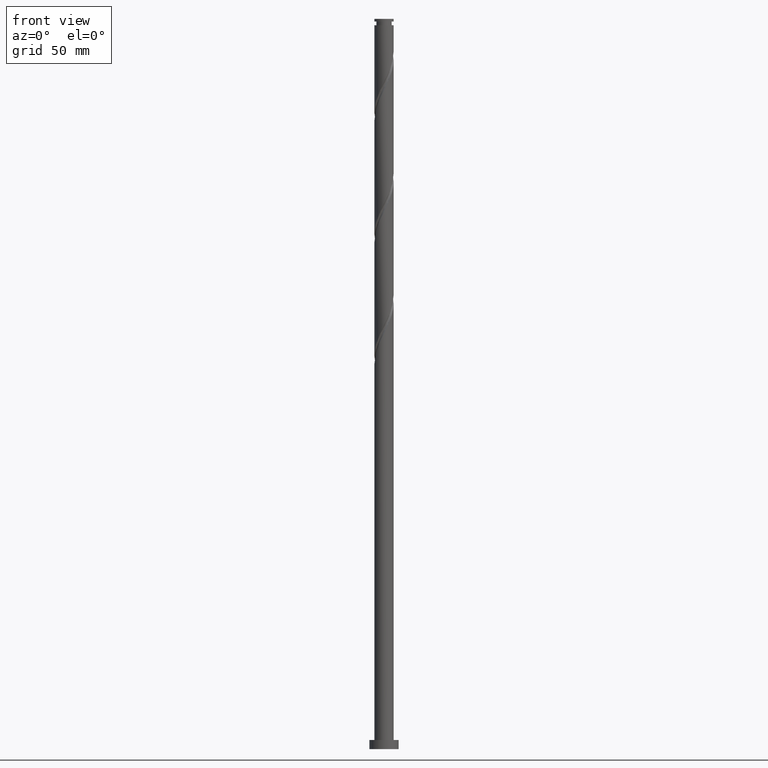
[diagram: clean part render]
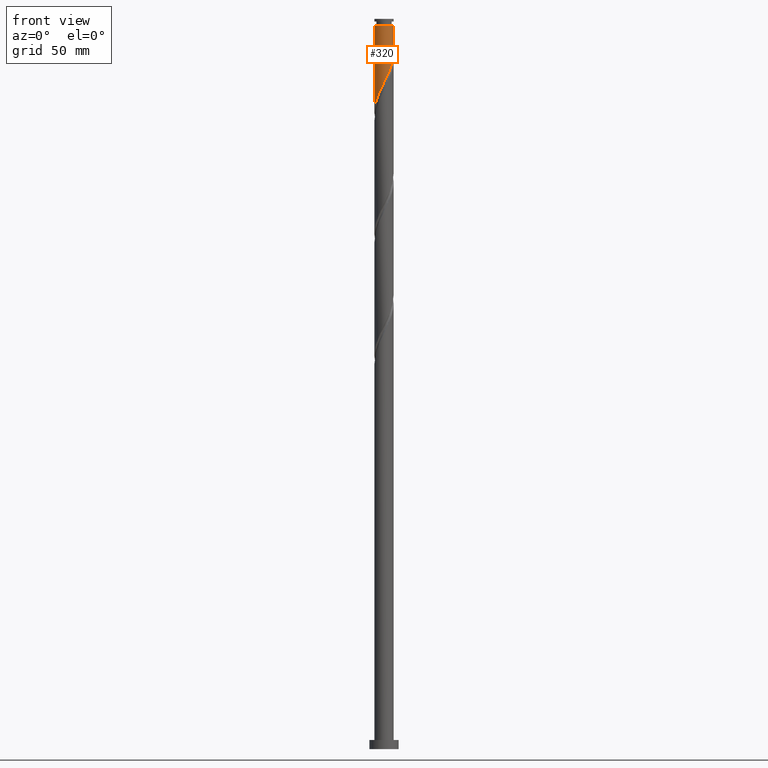
[diagram: same view with one face highlighted and labeled with its STEP entity id]
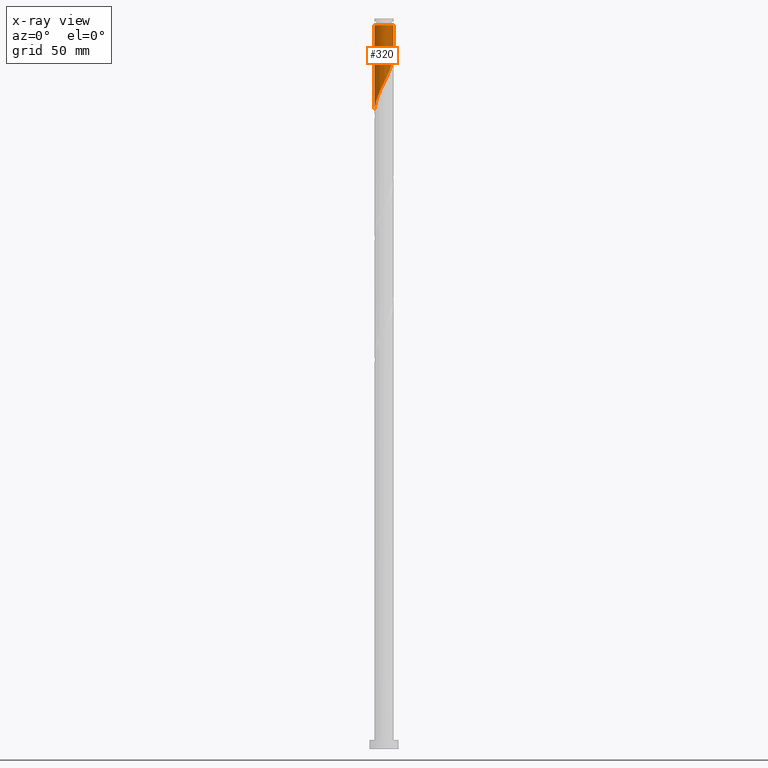
[diagram: x-ray of the same camera — body ghosted, the highlighted face saturated]
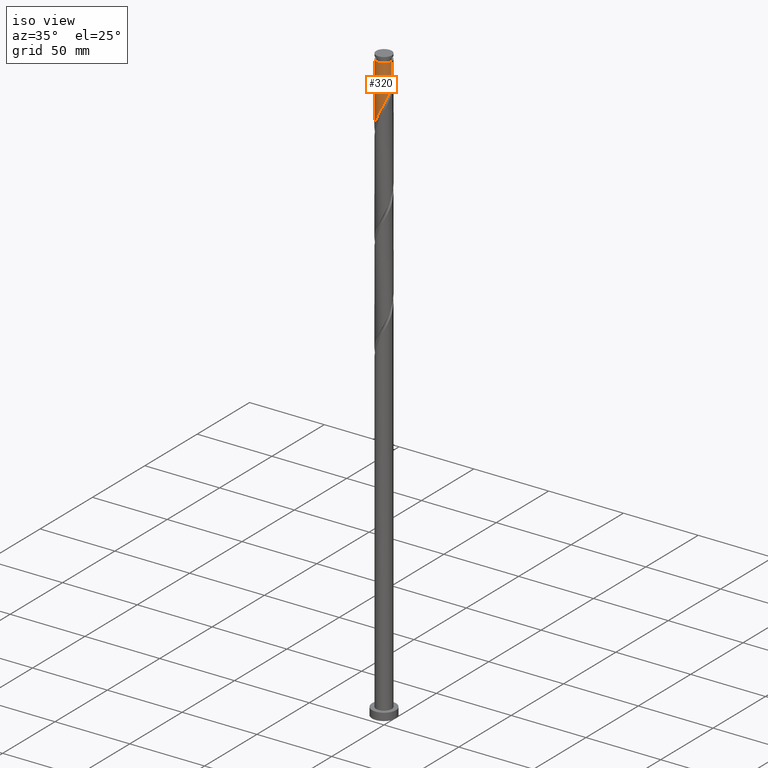
[diagram: same view with one face highlighted and labeled with its STEP entity id]
A machine part, front view. The second image highlights one B-rep face of the part: STEP entity #320.
The next image is the same camera in x-ray: the body ghosted, the highlighted face saturated — about 0% of this face is hidden behind the body in this view.
A second angle (iso view) of the same face is appended — the face is thin or edge-on in the first view.
In plain terms, the highlighted cylindrical surface (edge-blend (fillet) strip) has radius 5.25 mm, axis along (-0, -0, -1).
Its self-contained STEP definition (entity closure, byte-faithful):
#20 = CARTESIAN_POINT ( 'NONE',  ( 5.249999999999964473, 6.429395695523582459E-16, 396.4823926648974748 ) ) ;
#71 = VECTOR ( 'NONE', #1143, 1000.000000000000000 ) ;
#111 = CARTESIAN_POINT ( 'NONE',  ( 4.570344347720266320, -2.583496186035776354, 376.4823926648974748 ) ) ;
#114 = AXIS2_PLACEMENT_3D ( 'NONE', #1453, #1465, #846 ) ;
#161 = ORIENTED_EDGE ( 'NONE', *, *, #763, .T. ) ;
#209 = CARTESIAN_POINT ( 'NONE',  ( -5.250000000000000000, 0.000000000000000000, 400.0000000000000000 ) ) ;
#213 = VERTEX_POINT ( 'NONE', #20 ) ;
#264 = CARTESIAN_POINT ( 'NONE',  ( 3.124414752615059410, -4.219067723282167393, 372.0379482204529609 ) ) ;
#273 = CARTESIAN_POINT ( 'NONE',  ( -4.522545501547324598, -2.666286216150480559, 354.2601704426751894 ) ) ;
#320 = ADVANCED_FACE ( 'NONE', ( #682 ), #997, .T. ) ;
#400 = CARTESIAN_POINT ( 'NONE',  ( 3.567856639204733060, -3.890678500055764655, 373.1490593315641604 ) ) ;
#411 = CARTESIAN_POINT ( 'NONE',  ( -3.047074594884211951, -4.275258636996270845, 358.7046148871197033 ) ) ;
#424 = CARTESIAN_POINT ( 'NONE',  ( -1.585498099403861882, -5.035193736640150242, 362.0379482204530177 ) ) ;
#553 = ORIENTED_EDGE ( 'NONE', *, *, #1490, .F. ) ;
#557 = CARTESIAN_POINT ( 'NONE',  ( 0.04779884617294164612, -5.249782402186259134, 365.3712815537864458 ) ) ;
#567 = CARTESIAN_POINT ( 'NONE',  ( 2.178945289945498409, -4.776473324894038974, 369.8157259982307323 ) ) ;
#569 = DIRECTION ( 'NONE',  ( -0.000000000000000000, -0.000000000000000000, -1.000000000000000000 ) ) ;
#576 = CARTESIAN_POINT ( 'NONE',  ( -5.250000000000000000, -3.557722870118329166E-15, 348.6078359084190197 ) ) ;
#578 = DIRECTION ( 'NONE',  ( -1.000000000000000000, 0.000000000000000000, 0.000000000000000000 ) ) ;
#598 = CARTESIAN_POINT ( 'NONE',  ( -3.496422384488684809, -3.954998191903495108, 357.5935037760086743 ) ) ;
#682 = FACE_OUTER_BOUND ( 'NONE', #1856, .T. ) ;
#707 = CARTESIAN_POINT ( 'NONE',  ( -3.869364956144048850, -3.548311547224167750, 356.4823926648974748 ) ) ;
#735 = CARTESIAN_POINT ( 'NONE',  ( -2.597726805279741313, -4.595519082089047913, 359.8157259982309597 ) ) ;
#763 = EDGE_CURVE ( 'NONE', #1266, #1602, #1283, .T. ) ;
#792 = ORIENTED_EDGE ( 'NONE', *, *, #1081, .T. ) ;
#820 = ORIENTED_EDGE ( 'NONE', *, *, #1851, .F. ) ;
#846 = DIRECTION ( 'NONE',  ( -1.000000000000000000, 0.000000000000000000, 0.000000000000000000 ) ) ;
#882 = CARTESIAN_POINT ( 'NONE',  ( -1.044736808961955532, -5.145000000000000462, 363.1490593315642172 ) ) ;
#892 = CARTESIAN_POINT ( 'NONE',  ( 5.250000000000000888, 1.345357387859872341E-15, 381.9411692417524478 ) ) ;
#997 = CYLINDRICAL_SURFACE ( 'NONE', #114, 5.250000000000000000 ) ;
#1001 = CARTESIAN_POINT ( 'NONE',  ( -5.249999999999964473, 0.000000000000000000, 396.4823926648974748 ) ) ;
#1020 = CARTESIAN_POINT ( 'NONE',  ( 5.250000000000000888, 1.345357387859872341E-15, 381.9411692417524478 ) ) ;
#1031 = CARTESIAN_POINT ( 'NONE',  ( -5.250000000000000000, -3.557722870118329166E-15, 348.6078359084190197 ) ) ;
#1042 = CARTESIAN_POINT ( 'NONE',  ( 2.680972866025387980, -4.547456946508572351, 370.9268371093421024 ) ) ;
#1053 = CARTESIAN_POINT ( 'NONE',  ( 1.138245462365769844, -5.125124122146091032, 367.5935037760085038 ) ) ;
#1081 = EDGE_CURVE ( 'NONE', #213, #1266, #1558, .T. ) ;
#1119 = DIRECTION ( 'NONE',  ( -0.000000000000000000, -0.000000000000000000, -1.000000000000000000 ) ) ;
#1130 = CARTESIAN_POINT ( 'NONE',  ( 5.250000000000000000, 6.429395695523603167E-16, 400.0000000000000000 ) ) ;
#1143 = DIRECTION ( 'NONE',  ( -0.000000000000000000, -0.000000000000000000, -1.000000000000000000 ) ) ;
#1169 = CARTESIAN_POINT ( 'NONE',  ( -0.5039755185200520682, -5.254806263359850682, 364.2601704426753031 ) ) ;
#1180 = CARTESIAN_POINT ( 'NONE',  ( 0.5995732108659352910, -5.244758541012672026, 366.4823926648975316 ) ) ;
#1212 = CARTESIAN_POINT ( 'NONE',  ( -5.216027204956860786, -0.5962886860824313517, 349.8157259982307323 ) ) ;
#1266 = VERTEX_POINT ( 'NONE', #1001 ) ;
#1283 = LINE ( 'NONE', #209, #71 ) ;
#1336 = CARTESIAN_POINT ( 'NONE',  ( 4.841880738665349959, -2.103133638467833411, 377.5935037760086175 ) ) ;
#1345 = CARTESIAN_POINT ( 'NONE',  ( 5.250000000000001776, -0.2511809962554185649, 381.4326207161883531 ) ) ;
#1353 = CARTESIAN_POINT ( 'NONE',  ( 5.226019884829709028, -0.5012146878977704612, 380.9268371093419319 ) ) ;
#1368 = CARTESIAN_POINT ( 'NONE',  ( 5.173340098354292316, -1.050491511376014708, 379.8157259982309029 ) ) ;
#1395 = AXIS2_PLACEMENT_3D ( 'NONE', #1958, #569, #578 ) ;
#1440 = LINE ( 'NONE', #1130, #1525 ) ;
#1453 = CARTESIAN_POINT ( 'NONE',  ( 0.000000000000000000, 0.000000000000000000, 400.0000000000000000 ) ) ;
#1465 = DIRECTION ( 'NONE',  ( -0.000000000000000000, -0.000000000000000000, -1.000000000000000000 ) ) ;
#1471 =( BOUNDED_CURVE ( )  B_SPLINE_CURVE ( 2, ( #892, #1345, #1353, #1368, #1955, #1336, #111, #1988, #1643, #400, #264, #1042, #567, #1794, #1053, #1180, #557, #1169, #882, #424, #1489, #735, #411, #598, #707, #1674, #273, #1803, #1654, #1966, #1212, #1834, #1031 ),
 .UNSPECIFIED., .F., .T. ) 
 B_SPLINE_CURVE_WITH_KNOTS ( ( 3, 2, 2, 2, 2, 2, 2, 2, 2, 2, 2, 2, 2, 2, 2, 2, 3 ),
 ( 0.3045286012773111284, 0.3083333333333333481, 0.3166666666666666519, 0.3250000000000000111, 0.3333333333333333148, 0.3416666666666666741, 0.3499999999999999778, 0.3583333333333333370, 0.3666666666666666408, 0.3750000000000000000, 0.3833333333333333592, 0.3916666666666666630, 0.4000000000000000222, 0.4083333333333333259, 0.4166666666666666852, 0.4249999999999999889, 0.4295286012773112394 ),
 .UNSPECIFIED. ) 
 CURVE ( )  GEOMETRIC_REPRESENTATION_ITEM ( )  RATIONAL_B_SPLINE_CURVE ( ( 0.9066196499552243715, 0.9068171577856369847, 0.9090909090909361501, 0.9041108139711843128, 0.9090909090909361501, 0.9041108139711843128, 0.9090909090909361501, 0.9041108139711843128, 0.9090909090909361501, 0.9041108139711843128, 0.9090909090909361501, 0.9041108139711843128, 0.9090909090909361501, 0.9041108139711843128, 0.9090909090909361501, 0.9041108139711843128, 0.9090909090909361501, 0.9041108139711843128, 0.9090909090909361501, 0.9041108139711843128, 0.9090909090909361501, 0.9041108139711843128, 0.9090909090909361501, 0.9041108139711843128, 0.9090909090909361501, 0.9041108139711843128, 0.9090909090909361501, 0.9041108139711843128, 0.9090909090909361501, 0.9041108139711843128, 0.9090909090909361501, 0.9063845652764833671, 0.9066196499552243715 ) ) 
 REPRESENTATION_ITEM ( '' )  );
#1489 = CARTESIAN_POINT ( 'NONE',  ( -2.091612452341802264, -4.815356409364597745, 360.9268371093419319 ) ) ;
#1490 = EDGE_CURVE ( 'NONE', #1592, #1602, #1471, .T. ) ;
#1525 = VECTOR ( 'NONE', #1119, 1000.000000000000000 ) ;
#1558 = CIRCLE ( 'NONE', #1395, 5.249999999999964473 ) ;
#1592 = VERTEX_POINT ( 'NONE', #1020 ) ;
#1602 = VERTEX_POINT ( 'NONE', #576 ) ;
#1643 = CARTESIAN_POINT ( 'NONE',  ( 3.933332297989958537, -3.477268616829744197, 374.2601704426752462 ) ) ;
#1654 = CARTESIAN_POINT ( 'NONE',  ( -4.978069106951914513, -1.667731383170254933, 352.0379482204529040 ) ) ;
#1674 = CARTESIAN_POINT ( 'NONE',  ( -4.242307527799415112, -3.141624902544839060, 355.3712815537864458 ) ) ;
#1794 = CARTESIAN_POINT ( 'NONE',  ( 1.676917713865607507, -5.005489703279510927, 368.7046148871197602 ) ) ;
#1803 = CARTESIAN_POINT ( 'NONE',  ( -4.802783475295234972, -2.190947529756126499, 353.1490593315642172 ) ) ;
#1834 = CARTESIAN_POINT ( 'NONE',  ( -5.250000000000000000, -0.2991121215937829758, 349.2134272178035417 ) ) ;
#1851 = EDGE_CURVE ( 'NONE', #213, #1592, #1440, .T. ) ;
#1856 = EDGE_LOOP ( 'NONE', ( #820, #792, #161, #553 ) ) ;
#1955 = CARTESIAN_POINT ( 'NONE',  ( 5.007610418509818473, -1.576812574921925947, 378.7046148871197033 ) ) ;
#1958 = CARTESIAN_POINT ( 'NONE',  ( 0.000000000000000000, 0.000000000000000000, 396.4823926648974748 ) ) ;
#1966 = CARTESIAN_POINT ( 'NONE',  ( -5.153354738608592278, -1.144515236584386253, 350.9268371093419319 ) ) ;
#1988 = CARTESIAN_POINT ( 'NONE',  ( 4.298807956775184458, -3.063858733603725959, 375.3712815537863321 ) ) ;